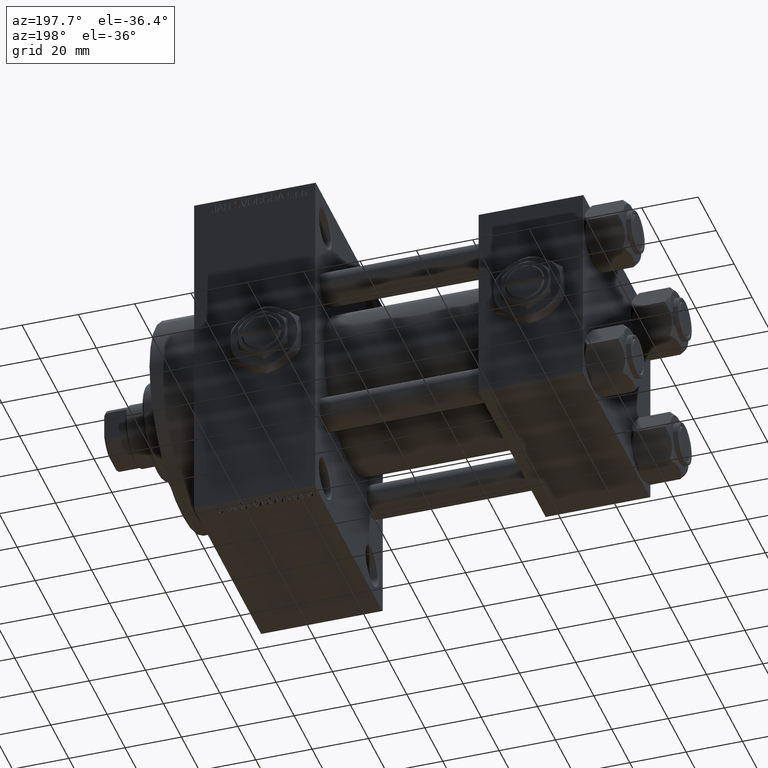
[diagram: clean part render]
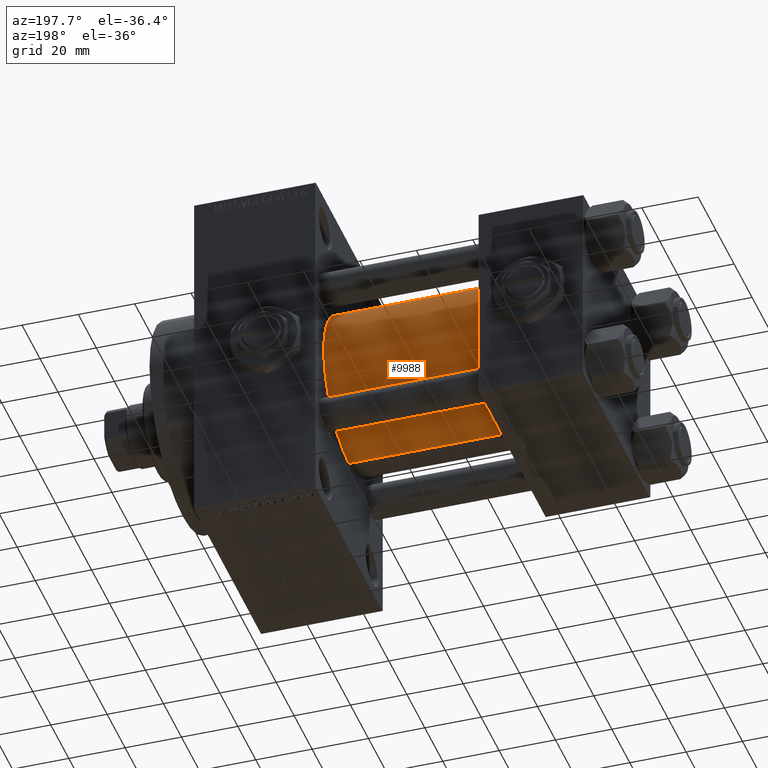
[diagram: same view with one face highlighted and labeled with its STEP entity id]
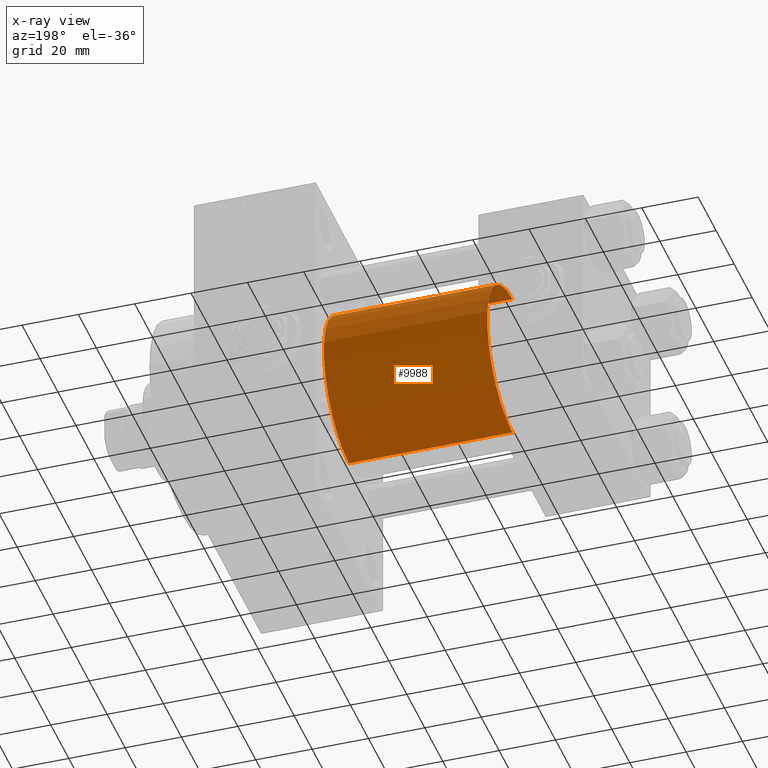
[diagram: x-ray of the same camera — body ghosted, the highlighted face saturated]
A machine part, auxiliary view. The second image highlights one B-rep face of the part: STEP entity #9988.
The next image is the same camera in x-ray: the body ghosted, the highlighted face saturated — about 1% of this face is hidden behind the body in this view.
In plain terms, the highlighted cylindrical surface (partial cylindrical patch) has radius 28 mm, axis along (-1, -0, -0).
Its self-contained STEP definition (entity closure, byte-faithful):
#134 = CARTESIAN_POINT ( 'NONE',  ( 37.00000000000000000, 8.269258236473776482E-16, -28.00000000000000000 ) ) ;
#270 = DIRECTION ( 'NONE',  ( 0.000000000000000000, 0.000000000000000000, -1.000000000000000000 ) ) ;
#382 = DIRECTION ( 'NONE',  ( 0.000000000000000000, 0.000000000000000000, 1.000000000000000000 ) ) ;
#967 = DIRECTION ( 'NONE',  ( -1.000000000000000000, -0.000000000000000000, -0.000000000000000000 ) ) ;
#2515 = CARTESIAN_POINT ( 'NONE',  ( 37.00000000000000000, -2.602085213965210642E-15, 28.00000000000000000 ) ) ;
#4146 = DIRECTION ( 'NONE',  ( 1.000000000000000000, -0.000000000000000000, 0.000000000000000000 ) ) ;
#7267 = AXIS2_PLACEMENT_3D ( 'NONE', #10365, #19769, #270 ) ;
#8524 = CARTESIAN_POINT ( 'NONE',  ( 95.00000000000000000, -2.602085213965210642E-15, 28.00000000000000000 ) ) ;
#8716 = FACE_OUTER_BOUND ( 'NONE', #41585, .T. ) ;
#9988 = ADVANCED_FACE ( 'NONE', ( #8716 ), #11972, .T. ) ;
#10365 = CARTESIAN_POINT ( 'NONE',  ( 95.00000000000000000, -2.602085213965210642E-15, 0.000000000000000000 ) ) ;
#11690 = CARTESIAN_POINT ( 'NONE',  ( 95.00000000000000000, 8.269258236473776482E-16, -28.00000000000000000 ) ) ;
#11775 = LINE ( 'NONE', #8524, #28133 ) ;
#11946 = VERTEX_POINT ( 'NONE', #11690 ) ;
#11972 = CYLINDRICAL_SURFACE ( 'NONE', #41208, 28.00000000000000000 ) ;
#13645 = CIRCLE ( 'NONE', #7267, 28.00000000000000000 ) ;
#15624 = CARTESIAN_POINT ( 'NONE',  ( 95.00000000000000000, -2.602085213965210642E-15, 28.00000000000000000 ) ) ;
#16690 = DIRECTION ( 'NONE',  ( 0.000000000000000000, 0.000000000000000000, 1.000000000000000000 ) ) ;
#16879 = VERTEX_POINT ( 'NONE', #15624 ) ;
#18646 = EDGE_CURVE ( 'NONE', #11946, #32339, #33404, .T. ) ;
#19137 = CARTESIAN_POINT ( 'NONE',  ( 37.00000000000000000, -2.602085213965210642E-15, 0.000000000000000000 ) ) ;
#19769 = DIRECTION ( 'NONE',  ( 1.000000000000000000, 0.000000000000000000, 0.000000000000000000 ) ) ;
#23727 = ORIENTED_EDGE ( 'NONE', *, *, #39795, .T. ) ;
#25369 = EDGE_CURVE ( 'NONE', #11946, #16879, #13645, .T. ) ;
#26202 = ORIENTED_EDGE ( 'NONE', *, *, #18646, .T. ) ;
#28133 = VECTOR ( 'NONE', #39048, 1000.000000000000000 ) ;
#28709 = CIRCLE ( 'NONE', #41509, 28.00000000000000000 ) ;
#29701 = ORIENTED_EDGE ( 'NONE', *, *, #48893, .F. ) ;
#30335 = VECTOR ( 'NONE', #45155, 1000.000000000000000 ) ;
#32339 = VERTEX_POINT ( 'NONE', #134 ) ;
#33404 = LINE ( 'NONE', #37890, #30335 ) ;
#35573 = VERTEX_POINT ( 'NONE', #2515 ) ;
#37890 = CARTESIAN_POINT ( 'NONE',  ( 95.00000000000000000, 8.269258236473776482E-16, -28.00000000000000000 ) ) ;
#39048 = DIRECTION ( 'NONE',  ( -1.000000000000000000, -0.000000000000000000, -0.000000000000000000 ) ) ;
#39795 = EDGE_CURVE ( 'NONE', #32339, #35573, #28709, .T. ) ;
#41208 = AXIS2_PLACEMENT_3D ( 'NONE', #47246, #967, #16690 ) ;
#41509 = AXIS2_PLACEMENT_3D ( 'NONE', #19137, #4146, #382 ) ;
#41585 = EDGE_LOOP ( 'NONE', ( #47265, #26202, #23727, #29701 ) ) ;
#45155 = DIRECTION ( 'NONE',  ( -1.000000000000000000, -0.000000000000000000, -0.000000000000000000 ) ) ;
#47246 = CARTESIAN_POINT ( 'NONE',  ( 95.00000000000000000, -2.602085213965210642E-15, 0.000000000000000000 ) ) ;
#47265 = ORIENTED_EDGE ( 'NONE', *, *, #25369, .F. ) ;
#48893 = EDGE_CURVE ( 'NONE', #16879, #35573, #11775, .T. ) ;